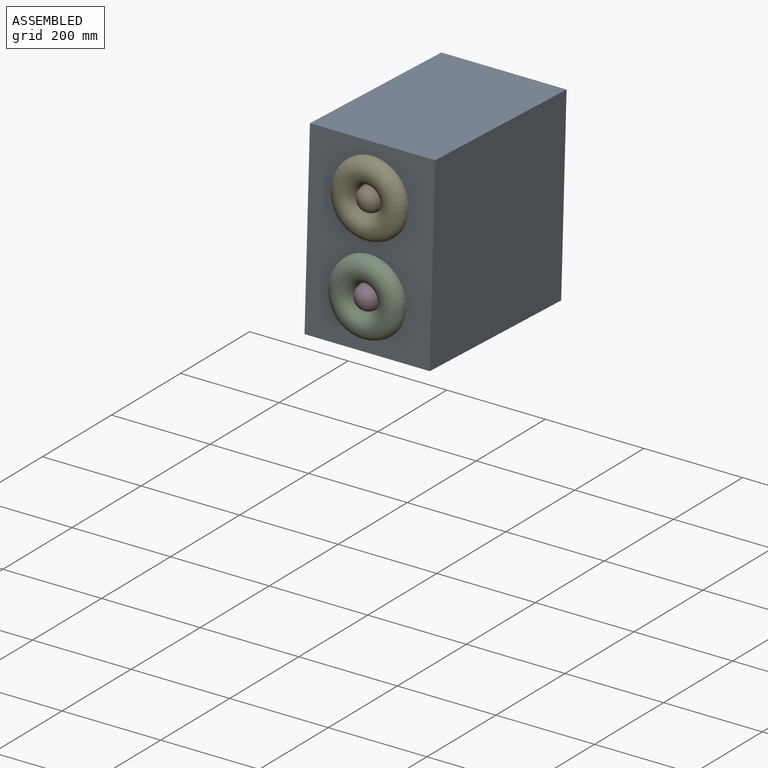
[diagram: assembled view]
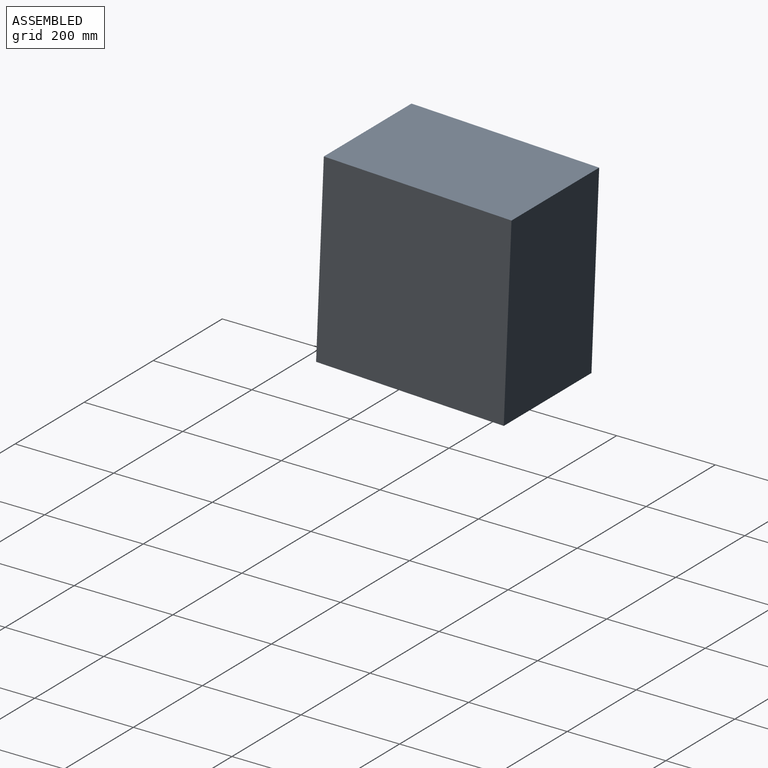
[diagram: assembled view, second angle]
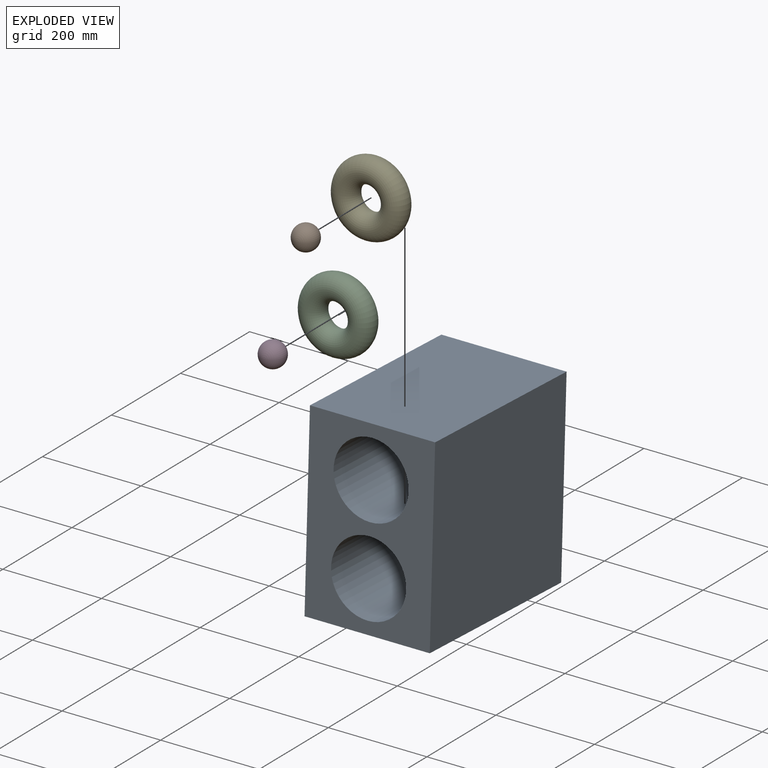
[diagram: exploded view]
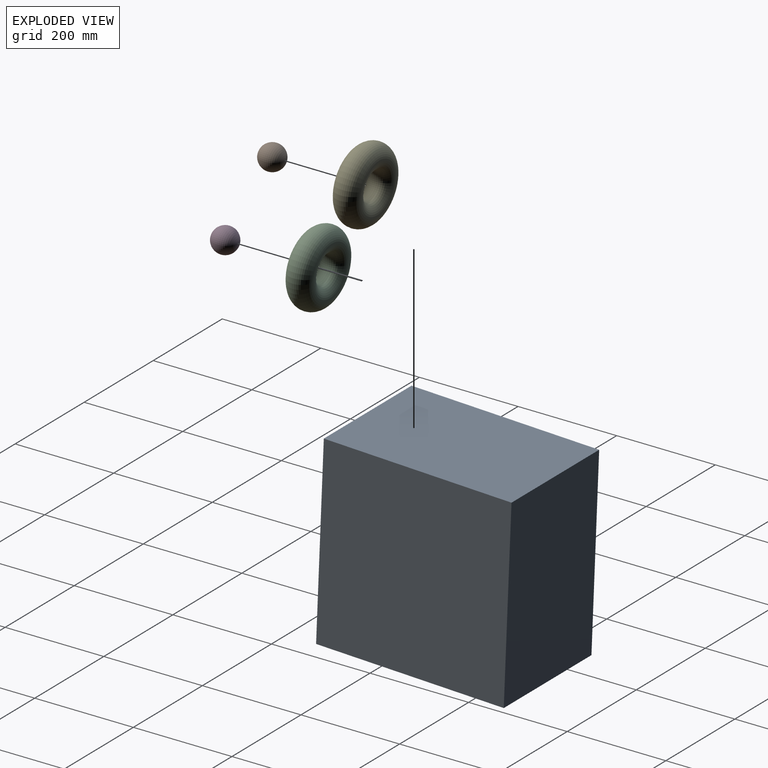
[diagram: exploded view, second angle]
ASSEMBLY  parts=5 mates=4
PART A: 10 faces, bbox 254x381x381 mm
  f0: plane 381x381mm, normal (1,0,0), area 145161mm2, adj f1,f3,f4,f5
  f1: plane 381x254mm, normal (0,0,1), area 96774mm2, adj f0,f2,f4,f5
  f2: plane 381x381mm, normal (-1,0,0), area 145161mm2, adj f1,f3,f4,f5
  f3: plane 381x254mm, normal (0,0,-1), area 96774mm2, adj f0,f2,f4,f5
  f4: plane 381x254mm, normal (0,1,0), area 96774mm2, adj f0,f1,f2,f3
  f5: plane 381x254mm, normal (0,-1,0), area 60291.1mm2, adj f0,f1,f2,f3,f6,f8
  f6: cylinder r=76.2mm len=190.5mm, axis (0,-1,0), area 91207.3mm2, adj f5,f7
  f7: plane 152.4x152.4mm, normal (0,-1,0), area 18241.5mm2, adj f6
  f8: cylinder r=76.2mm len=190.5mm, axis (0,-1,0), area 91207.3mm2, adj f5,f9
  f9: plane 152.4x152.4mm, normal (0,-1,0), area 18241.5mm2, adj f8
PART B: 1 faces, bbox 25.1x0x50.8 mm
  f0: torus R=0.26mm, axis (0,0,-1), area 7979.9mm2
PART C: 1 faces, bbox 165x165x50.8 mm
  f0: torus R=50.8mm, axis (0,0,-1), area 50939.8mm2
PART D: same geometry as B
PART E: same geometry as C
PLACE A rot(axis=(0,1,-0.02),180deg) t=(74.56,-300.39,149.15)mm
PLACE B rot(axis=(0,0.72,0.69),180deg) t=(74.56,-322.1,239.02)mm
PLACE C rot(axis=(0,0.72,0.69),180deg) t=(74.56,-330.69,61.43)mm
PLACE D rot(axis=(0,0.72,0.69),180deg) t=(74.56,-329.43,61.37)mm
PLACE E rot(axis=(0,0.72,0.69),180deg) t=(74.56,-323.37,239.07)mm
MATE fastened A.f6 <-> C.f0  axis (0,-1,0.04) through (74.56,-304.05,60.33)mm
MATE fastened B.f0 <-> E.f0  axis (0,-1,0.04) through (74.56,-296.72,237.98)mm
MATE fastened C.f0 <-> D.f0  axis (0,-1,0.04) through (74.56,-304.05,60.33)mm
MATE fastened E.f0 <-> A.f8  axis (0,-1,0.04) through (74.56,-296.72,237.98)mm
